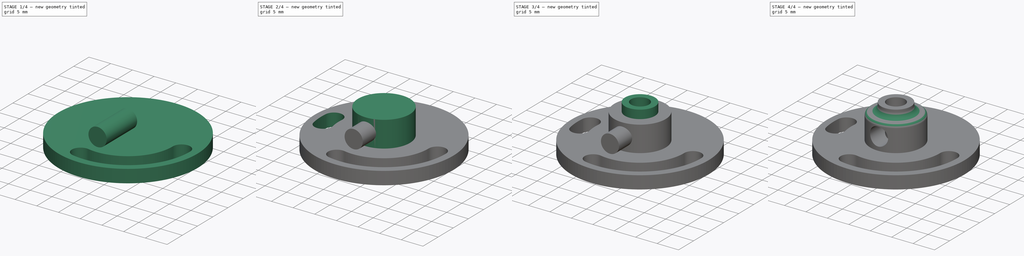
[diagram: build sequence overview — one tinted view per stage of 4, left to right]
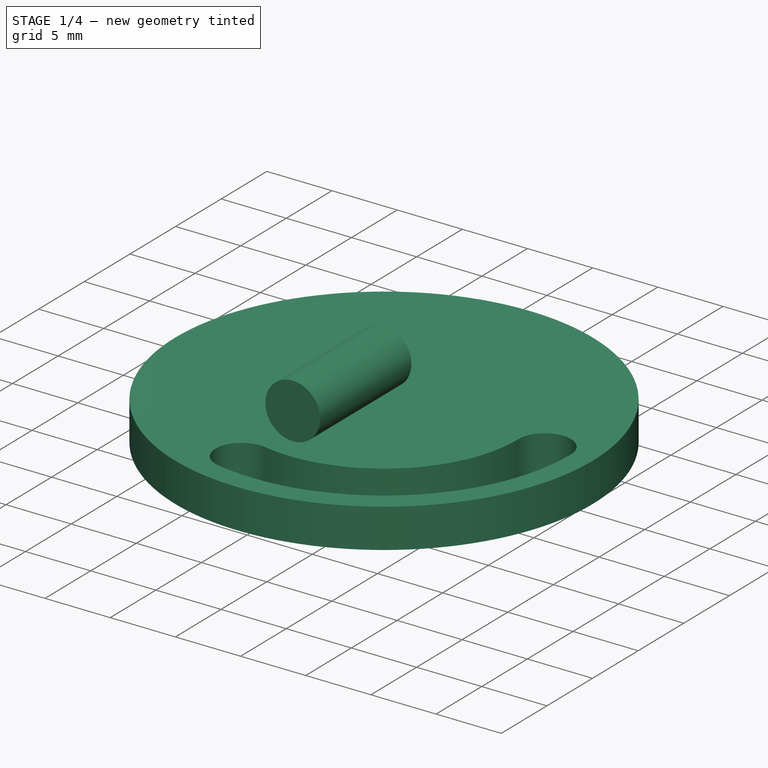
[diagram: stage 1 of 4 — iso view after this stage's code; geometry added in this stage tinted green]
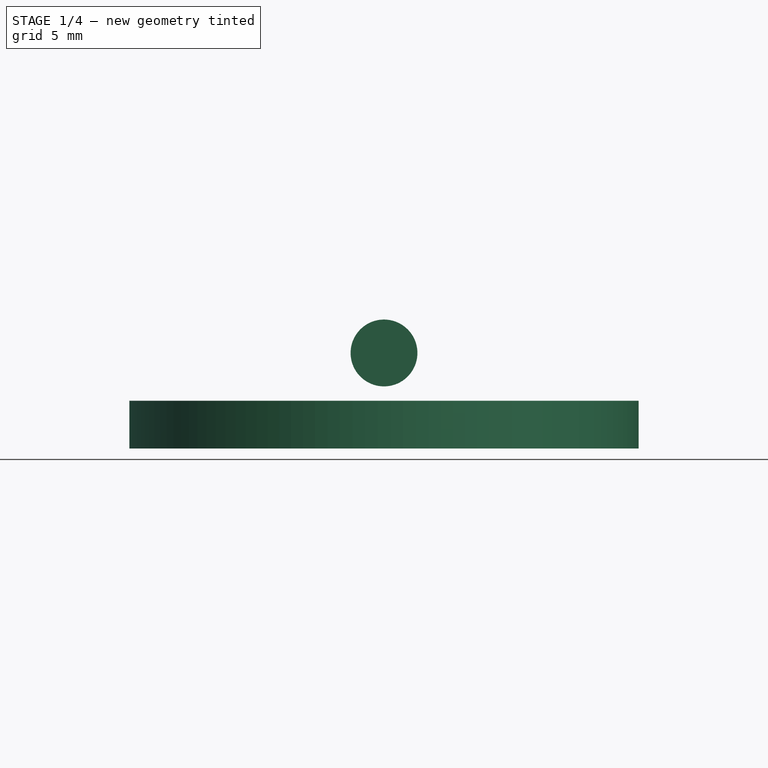
[diagram: stage 1 of 4 — front view after this stage's code; geometry added in this stage tinted green]
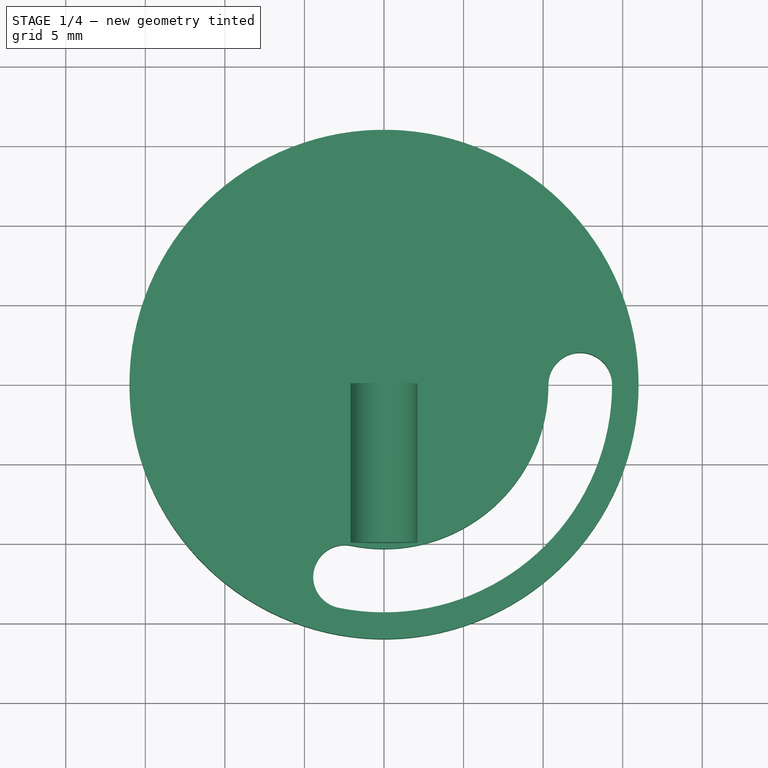
[diagram: stage 1 of 4 — top view after this stage's code; geometry added in this stage tinted green]
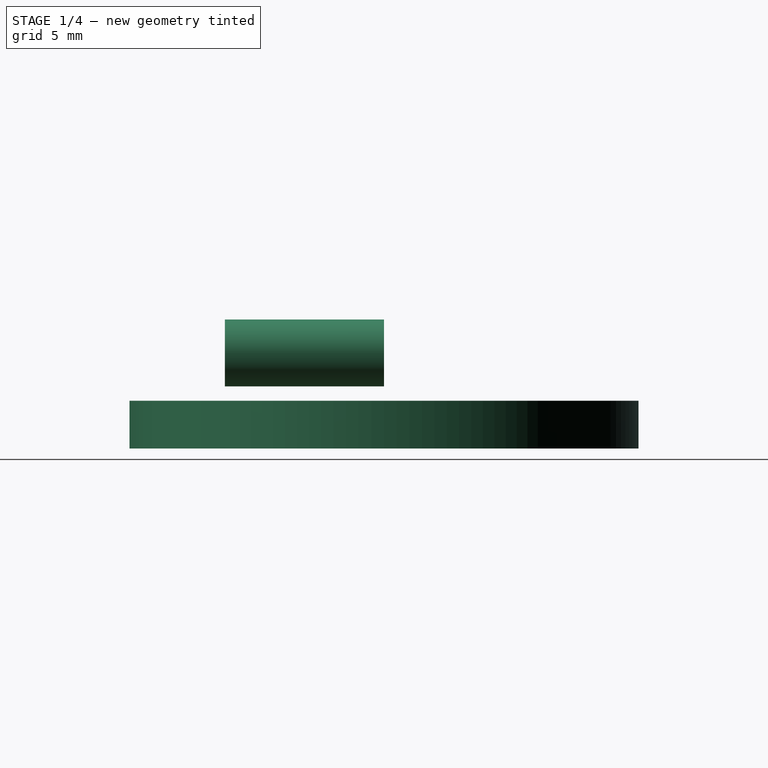
[diagram: stage 1 of 4 — right view after this stage's code; geometry added in this stage tinted green]
FCSTD DOCUMENT  (FreeCAD 0.16RUnknown)
Label: signal_plate
License: All rights reserved
LicenseURL: http://en.wikipedia.org/wiki/All_rights_reserved
objects: Sketcher::SketchObject×8, PartDesign::Pad×4, PartDesign::Pocket×4, PartDesign::Fillet×2, Part::Cut×1
note: 27 computed .brp shape members not serialized (recipe doc carries the construction recipe); baked Part::Feature solids carry a one-line shape summary decoded from their .brp

FEATURE [Sketcher::SketchObject] Sketch
  sketch-geometry (1):
    g0: Circle CenterX=0 CenterY=0 CenterZ=0 NormalX=0 NormalY=0 NormalZ=1 Radius=16
  constraints (2):
    c: Coincident(g0,g-1)
    c: Radius(g0) = 16
FEATURE [PartDesign::Pad] Pad
  Length = 3
  Length2 = 100
  Sketch = -> Sketch
  Type = 0
FEATURE [Sketcher::SketchObject] Sketch001
  Placement = pos=(0,0,3) rot=(0,0,1;0rad)
  Support = -> Pad [Face3]
  sketch-geometry (12):
    g0: ArcOfCircle CenterX=0 CenterY=0 CenterZ=0 NormalX=0 NormalY=0 NormalZ=1 Radius=14.3346 StartAngle=4.5124 EndAngle=6.28319
    g1: ArcOfCircle CenterX=0 CenterY=0 CenterZ=0 NormalX=0 NormalY=0 NormalZ=1 Radius=10.3346 StartAngle=4.5124 EndAngle=6.28319
    g2: ArcOfCircle CenterX=12.3346 CenterY=0 CenterZ=0 NormalX=0 NormalY=0 NormalZ=1 Radius=2 StartAngle=0 EndAngle=3.14159
    g3: ArcOfCircle CenterX=-2.45035 CenterY=-12.0887 CenterZ=0 NormalX=0 NormalY=0 NormalZ=1 Radius=2 StartAngle=1.37081 EndAngle=4.5124
    g4: LineSegment [constr] StartX=-2.84766 StartY=-14.0489 StartZ=0 EndX=-2.05304 EndY=-10.1286 EndZ=0
    g5: GeomPoint [constr] X=12.3346 Y=2.02682 Z=0
    g6: GeomPoint [constr] X=-4.41049 Y=-11.6914 Z=0
    g7: LineSegment [constr] StartX=-4.41049 StartY=-11.6914 StartZ=0 EndX=-2.45035 EndY=-12.0887 EndZ=0
    g8: LineSegment [constr] StartX=12.3346 StartY=0 StartZ=0 EndX=12.3346 EndY=2.02682 EndZ=0
    g9: LineSegment [constr] StartX=10.3346 StartY=0 StartZ=0 EndX=14.3346 EndY=0 EndZ=0
    g10: LineSegment [constr] StartX=0 StartY=0 StartZ=0 EndX=12.3346 EndY=2.02682 EndZ=0
    g11: LineSegment [constr] StartX=0 StartY=0 StartZ=0 EndX=-4.41049 EndY=-11.6914 EndZ=0
  constraints (30):
    c: Coincident(g0,g-1)
    c: PointOnObject(g0,g-1)
    c: Coincident(g1,g-1)
    c: PointOnObject(g1,g-1)
    c: PointOnObject(g2,g-1)
    c: Coincident(g2,g1)
    c: Coincident(g2,g0)
    c: Coincident(g3,g0)
    c: Coincident(g3,g1)
    c: Coincident(g4,g0)
    c: Coincident(g4,g1)
    c: PointOnObject(g3,g4)
    c: Perpendicular(g0,g4)
    c: Distance(g4) = 4
    c: PointOnObject(g6,g3)
    c: Coincident(g7,g6)
    c: Coincident(g7,g3)
    c: Coincident(g8,g2)
    c: Coincident(g8,g5)
    c: Vertical(g8)
    c: Perpendicular(g4,g7)
    c: Coincident(g9,g1)
    c: Coincident(g9,g0)
    c: Coincident(g10,g-1)
    c: Coincident(g10,g5)
    c: Tangent(g10,g2)
    c: Distance(g10) = 12.5
    c: Coincident(g11,g-1)
    c: Angle(g11,g10) = 2.0944
    c: Coincident(g6,g11)
FEATURE [PartDesign::Pocket] Pocket
  Length = 5
  Sketch = -> Sketch001
  Type = 1
FEATURE [Sketcher::SketchObject] Sketch007
  Placement = pos=(0,0,0) rot=(1,0,0;1.5708rad)
  sketch-geometry (1):
    g0: Circle CenterX=0 CenterY=6 CenterZ=0 NormalX=0 NormalY=0 NormalZ=1 Radius=2.1
  constraints (3):
    c: PointOnObject(g0,g-2)
    c: Radius(g0) = 2.1
    c: DistanceY(g-1,g0) = 6
FEATURE [PartDesign::Pad] Pad003
  Length = 10
  Length2 = 100
  Placement = pos=(0,0,0) rot=(1,0,0;1.5708rad)
  Sketch = -> Sketch007
  Type = 0
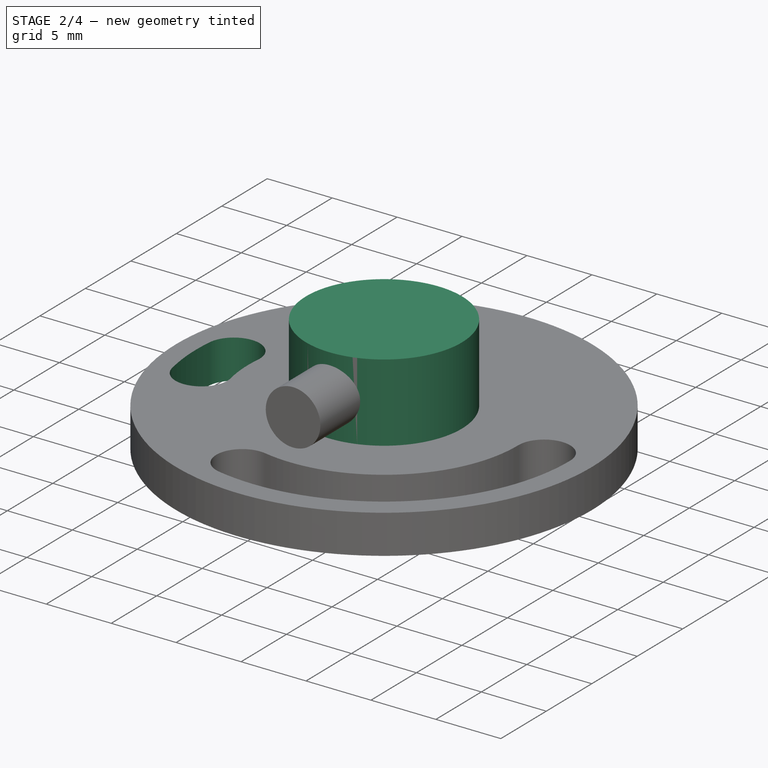
[diagram: stage 2 of 4 — iso view after this stage's code; geometry added in this stage tinted green]
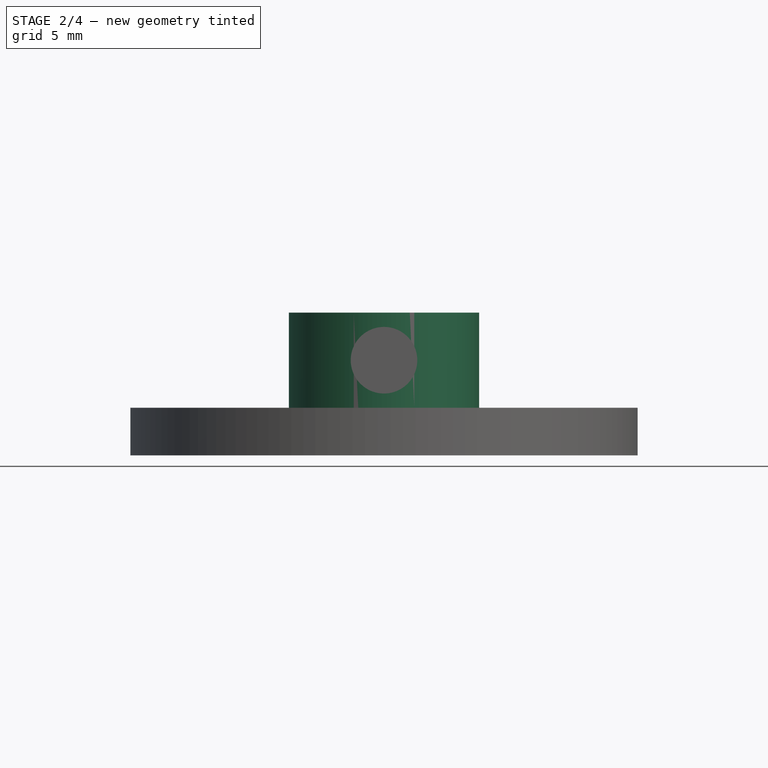
[diagram: stage 2 of 4 — front view after this stage's code; geometry added in this stage tinted green]
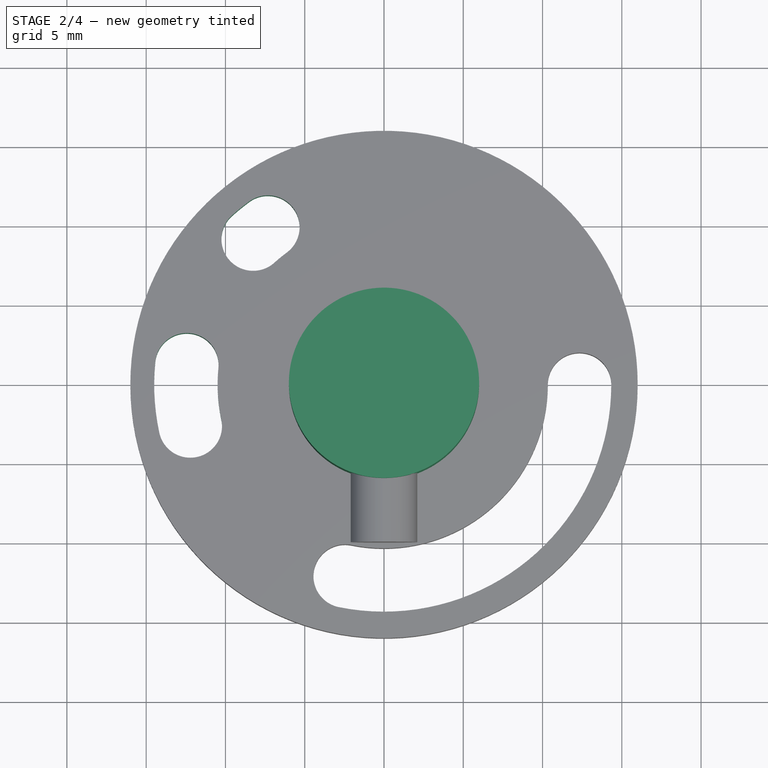
[diagram: stage 2 of 4 — top view after this stage's code; geometry added in this stage tinted green]
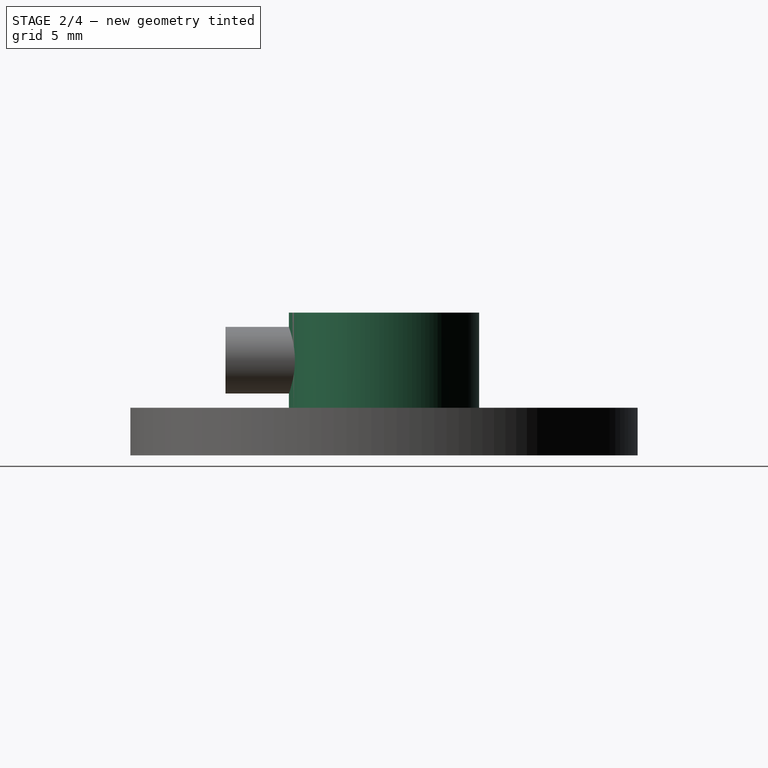
[diagram: stage 2 of 4 — right view after this stage's code; geometry added in this stage tinted green]
FEATURE [Sketcher::SketchObject] Sketch002
  ExternalGeometry = -> [Pocket]
  Placement = pos=(0,0,3) rot=(0,0,1;0rad)
  Support = -> Pocket [Face3]
  sketch-geometry (13):
    g0: ArcOfCircle CenterX=0 CenterY=0 CenterZ=0 NormalX=0 NormalY=0 NormalZ=1 Radius=10.4957 StartAngle=3.04217 EndAngle=3.35307
    g1: ArcOfCircle CenterX=0 CenterY=0 CenterZ=0 NormalX=0 NormalY=0 NormalZ=1 Radius=14.4957 StartAngle=3.04217 EndAngle=3.35307
    g2: ArcOfCircle CenterX=-12.2173 CenterY=-2.6229 CenterZ=0 NormalX=0 NormalY=0 NormalZ=1 Radius=2 StartAngle=3.35307 EndAngle=6.49466
    g3: ArcOfCircle CenterX=-12.434 CenterY=1.24031 CenterZ=0 NormalX=0 NormalY=0 NormalZ=1 Radius=2 StartAngle=6.18376 EndAngle=9.32535
    g4: LineSegment [constr] StartX=-14.4241 StartY=1.43883 StartZ=0 EndX=-10.4438 EndY=1.04179 EndZ=0
    g5: LineSegment [constr] StartX=-12.434 StartY=1.24031 StartZ=0 EndX=-12.2355 EndY=3.23044 EndZ=0
    g6: LineSegment [constr] StartX=-14.1727 StartY=-3.0427 StartZ=0 EndX=-10.2619 EndY=-2.20309 EndZ=0
    g7: LineSegment [constr] StartX=-12.2173 StartY=-2.6229 StartZ=0 EndX=-11.7975 EndY=-4.57834 EndZ=0
    g8: LineSegment [constr] StartX=-12.434 StartY=1.24031 StartZ=0 EndX=0 EndY=0 EndZ=0
    g9: LineSegment [constr] StartX=12.3346 StartY=2 StartZ=0 EndX=0 EndY=0 EndZ=0
    g10: LineSegment [constr] StartX=12.3346 StartY=0 StartZ=0 EndX=12.3346 EndY=2 EndZ=0
    g11: LineSegment [constr] StartX=0 StartY=0 StartZ=0 EndX=-11.7975 EndY=-4.57834 EndZ=0
    g12: LineSegment [constr] StartX=0 StartY=0 StartZ=0 EndX=-12.2355 EndY=3.23044 EndZ=0
  constraints (35):
    c: Coincident(g0,g-1)
    c: Coincident(g1,g-1)
    c: Coincident(g2,g0)
    c: Coincident(g2,g1)
    c: Coincident(g3,g0)
    c: Coincident(g3,g1)
    c: Coincident(g4,g1)
    c: Coincident(g4,g0)
    c: Coincident(g5,g3)
    c: PointOnObject(g5,g3)
    c: Coincident(g6,g1)
    c: Coincident(g6,g0)
    c: Coincident(g7,g2)
    c: PointOnObject(g7,g2)
    c: PointOnObject(g2,g6)
    c: PointOnObject(g3,g4)
    c: Perpendicular(g1,g4)
    c: Perpendicular(g1,g6)
    c: Perpendicular(g7,g6)
    c: Perpendicular(g4,g5)
    c: Equal(g2,g-4)
    c: Coincident(g8,g3)
    c: Coincident(g8,g-1)
    c: Vertical(g10)
    c: Equal(g8,g9)
    c: Coincident(g9,g-1)
    c: Coincident(g9,g10)
    c: Coincident(g10,g-3)
    c: PointOnObject(g9,g-3)
    c: Coincident(g11,g-1)
    c: Coincident(g12,g-1)
    c: Angle(g9,g12) = 2.72271
    c: Angle(g11,g9) = 2.93215
    c: Coincident(g12,g5)
    c: Coincident(g7,g11)
FEATURE [PartDesign::Pocket] Pocket001
  Length = 5
  Sketch = -> Sketch002
  Type = 2
FEATURE [Sketcher::SketchObject] Sketch003
  ExternalGeometry = -> [Pocket001]
  Placement = pos=(0,0,3) rot=(0,0,1;0rad)
  Support = -> Pocket001 [Face3]
  sketch-geometry (12):
    g0: LineSegment [constr] StartX=12.3346 StartY=2 StartZ=0 EndX=0 EndY=0 EndZ=0
    g1: LineSegment [constr] StartX=12.3346 StartY=2 StartZ=0 EndX=12.3346 EndY=0 EndZ=0
    g2: ArcOfCircle CenterX=0 CenterY=0 CenterZ=0 NormalX=0 NormalY=0 NormalZ=1 Radius=14.3346 StartAngle=2.20645 EndAngle=2.30383
    g3: ArcOfCircle CenterX=0 CenterY=0 CenterZ=0 NormalX=0 NormalY=0 NormalZ=1 Radius=10.3346 StartAngle=2.20645 EndAngle=2.30383
    g4: ArcOfCircle CenterX=-8.25345 CenterY=9.16638 CenterZ=0 NormalX=0 NormalY=0 NormalZ=1 Radius=2 StartAngle=2.30383 EndAngle=5.44543
    g5: ArcOfCircle CenterX=-7.32308 CenterY=9.92545 CenterZ=0 NormalX=0 NormalY=0 NormalZ=1 Radius=2 StartAngle=5.34804 EndAngle=8.48963
    g6: LineSegment [constr] StartX=-9.59171 StartY=10.6527 StartZ=0 EndX=-6.91519 EndY=7.68009 EndZ=0
    g7: LineSegment [constr] StartX=-8.51048 StartY=11.5348 StartZ=0 EndX=-6.13567 EndY=8.31608 EndZ=0
    g8: LineSegment [constr] StartX=-7.32308 StartY=9.92545 StartZ=0 EndX=-5.71371 EndY=11.1129 EndZ=0
    g9: LineSegment [constr] StartX=-8.25345 StartY=9.16638 StartZ=0 EndX=-9.73974 EndY=7.82812 EndZ=0
    g10: LineSegment [constr] StartX=0 StartY=0 StartZ=0 EndX=-9.73974 EndY=7.82812 EndZ=0
    g11: LineSegment [constr] StartX=0 StartY=0 StartZ=0 EndX=-5.71371 EndY=11.1129 EndZ=0
  constraints (33):
    c: PointOnObject(g0,g-3)
    c: Coincident(g0,g-1)
    c: Coincident(g1,g0)
    c: Coincident(g1,g-3)
    c: Vertical(g1)
    c: Coincident(g2,g-1)
    c: Coincident(g3,g-1)
    c: Coincident(g4,g3)
    c: Coincident(g5,g3)
    c: Coincident(g5,g2)
    c: Coincident(g2,g4)
    c: Coincident(g6,g2)
    c: Coincident(g6,g3)
    c: Coincident(g7,g2)
    c: Coincident(g7,g3)
    c: Coincident(g8,g5)
    c: PointOnObject(g8,g5)
    c: Coincident(g9,g4)
    c: PointOnObject(g9,g4)
    c: PointOnObject(g4,g6)
    c: PointOnObject(g5,g7)
    c: Perpendicular(g8,g7)
    c: Perpendicular(g2,g7)
    c: Perpendicular(g9,g6)
    c: Perpendicular(g2,g6)
    c: Equal(g-3,g5)
    c: Coincident(g10,g-1)
    c: Coincident(g11,g-1)
    c: Angle(g0,g11) = 1.88496
    c: Angle(g0,g10) = 2.30383
    c: Coincident(g10,g9)
    c: Coincident(g11,g8)
    c: Equal(g11,g0)
FEATURE [PartDesign::Pocket] Pocket002
  Length = 5
  Sketch = -> Sketch003
  Type = 2
FEATURE [Sketcher::SketchObject] Sketch004
  Placement = pos=(0,0,3) rot=(0,0,1;0rad)
  Support = -> Pocket002 [Face3]
  sketch-geometry (1):
    g0: Circle CenterX=0 CenterY=0 CenterZ=0 NormalX=0 NormalY=0 NormalZ=1 Radius=6
  constraints (2):
    c: Coincident(g0,g-1)
    c: Radius(g0) = 6
FEATURE [PartDesign::Pad] Pad001
  Length = 6
  Length2 = 100
  Sketch = -> Sketch004
  Type = 0
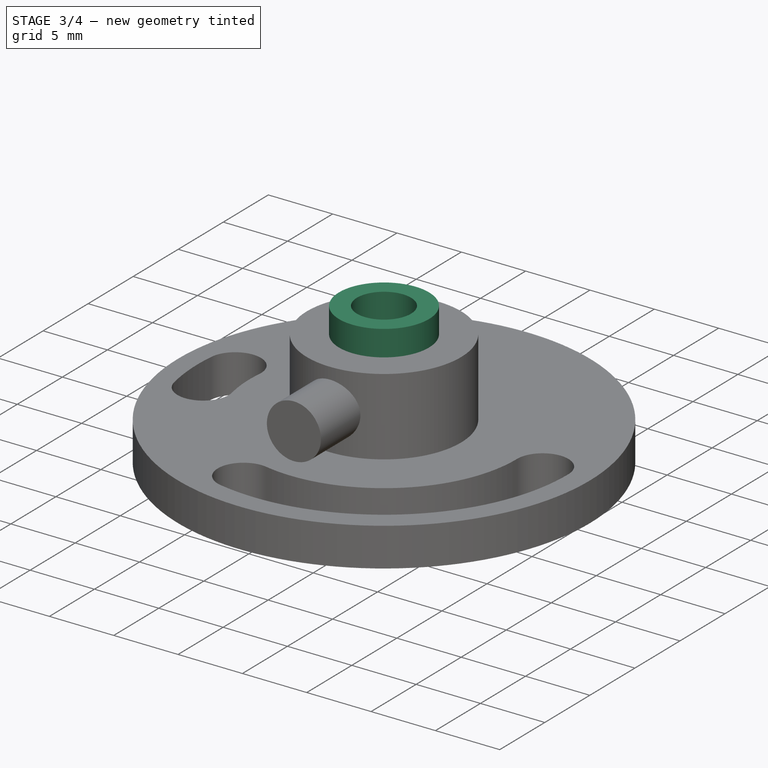
[diagram: stage 3 of 4 — iso view after this stage's code; geometry added in this stage tinted green]
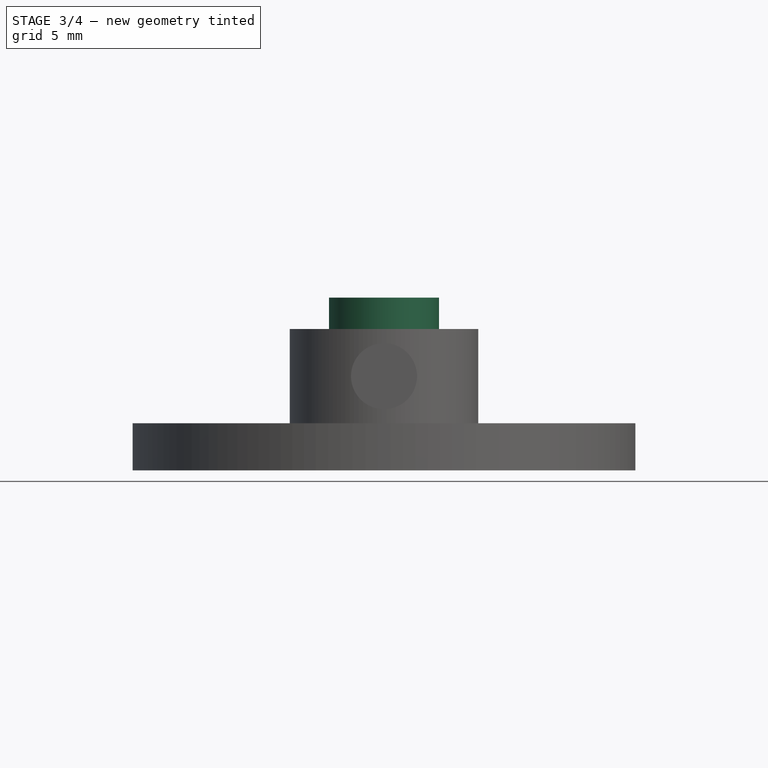
[diagram: stage 3 of 4 — front view after this stage's code; geometry added in this stage tinted green]
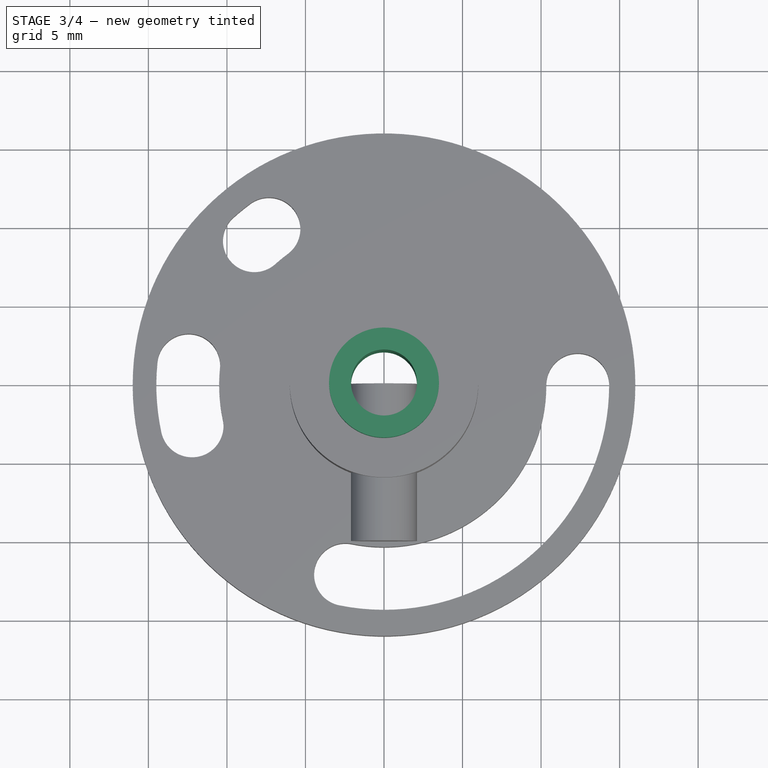
[diagram: stage 3 of 4 — top view after this stage's code; geometry added in this stage tinted green]
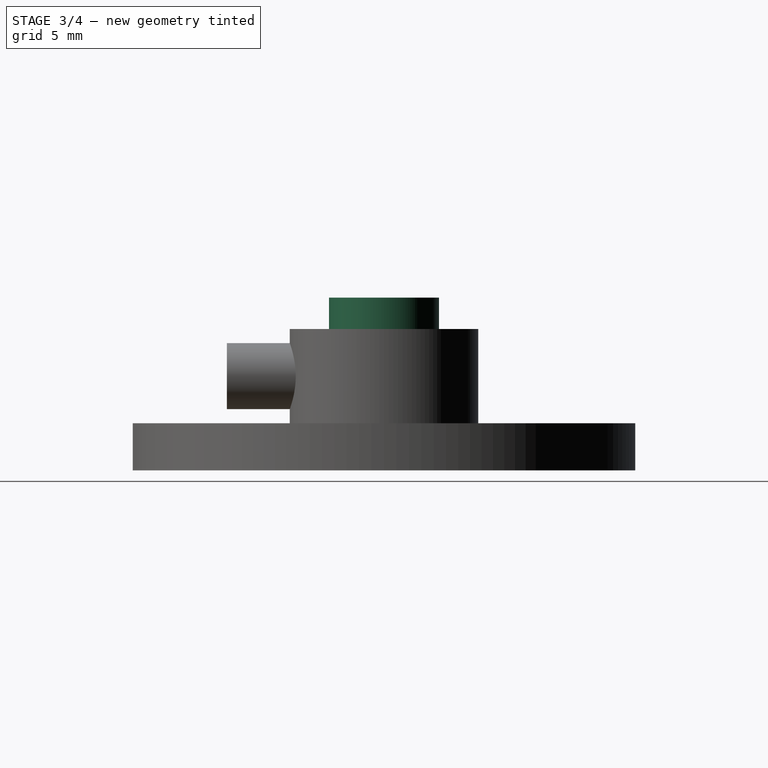
[diagram: stage 3 of 4 — right view after this stage's code; geometry added in this stage tinted green]
FEATURE [Sketcher::SketchObject] Sketch005
  Placement = pos=(0,0,9) rot=(0,0,1;0rad)
  Support = -> Pad001 [Face1]
  sketch-geometry (1):
    g0: Circle CenterX=0 CenterY=0 CenterZ=0 NormalX=0 NormalY=0 NormalZ=1 Radius=3.5
  constraints (2):
    c: Coincident(g0,g-1)
    c: Radius(g0) = 3.5
FEATURE [PartDesign::Pad] Pad002
  Length = 2
  Length2 = 100
  Sketch = -> Sketch005
  Type = 0
FEATURE [Sketcher::SketchObject] Sketch006
  Placement = pos=(0,0,11) rot=(0,0,1;0rad)
  Support = -> Pad002 [Face19]
  sketch-geometry (1):
    g0: Circle CenterX=0 CenterY=0 CenterZ=0 NormalX=0 NormalY=0 NormalZ=1 Radius=2.1
  constraints (2):
    c: Coincident(g0,g-1)
    c: Radius(g0) = 2.1
FEATURE [PartDesign::Pocket] Pocket003
  Length = 5
  Sketch = -> Sketch006
  Type = 1
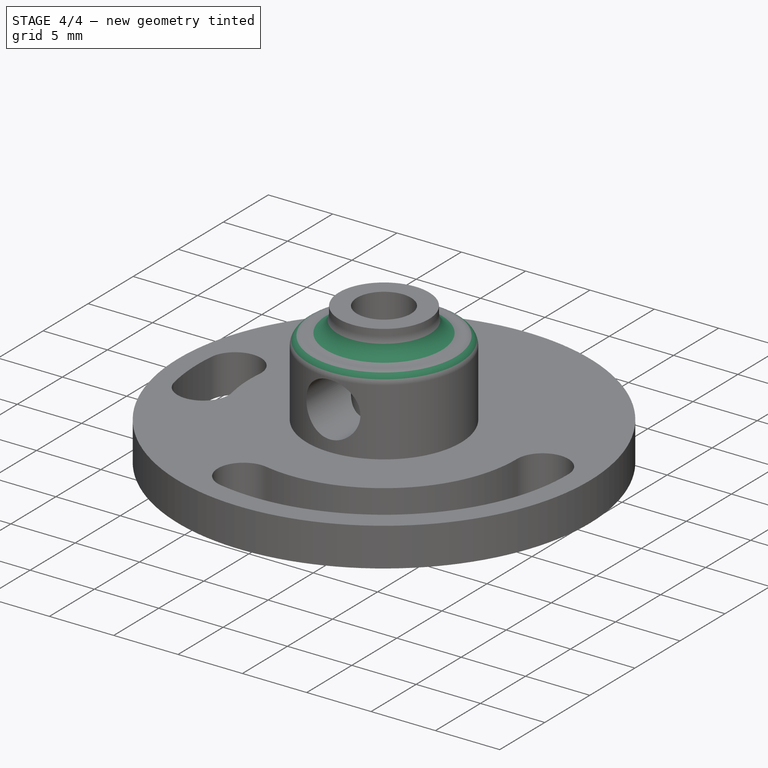
[diagram: stage 4 of 4 — iso view after this stage's code; geometry added in this stage tinted green]
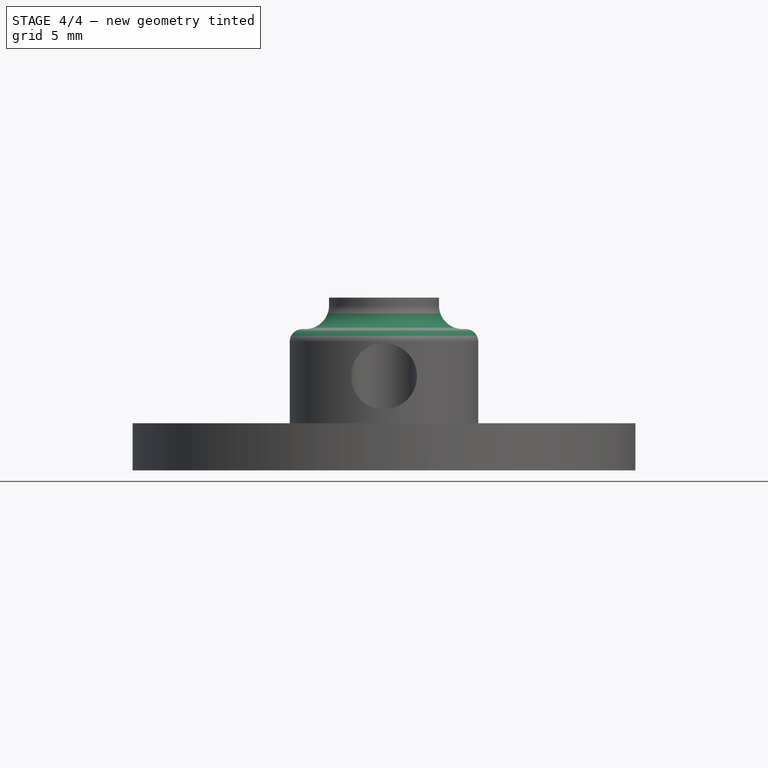
[diagram: stage 4 of 4 — front view after this stage's code; geometry added in this stage tinted green]
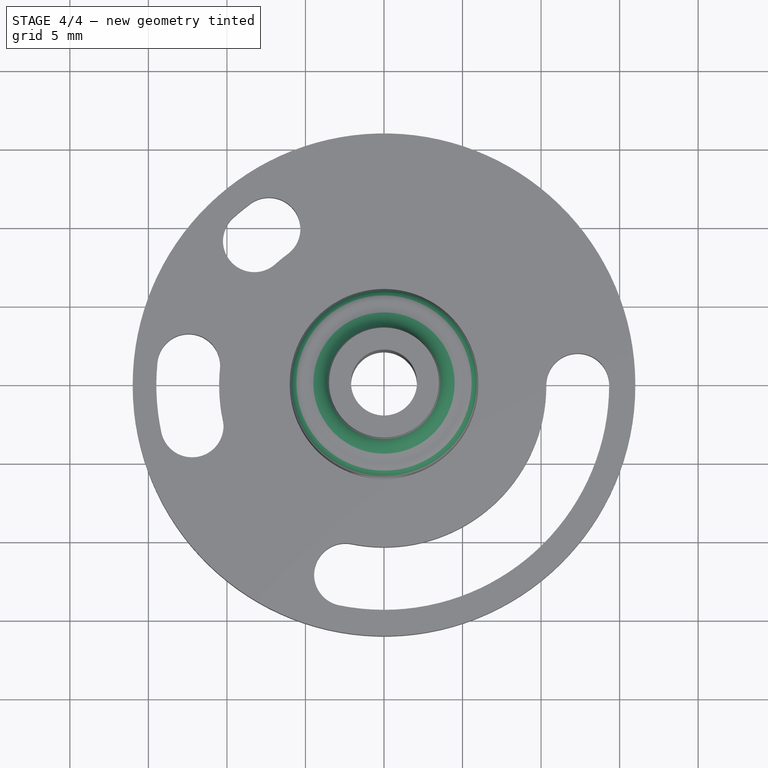
[diagram: stage 4 of 4 — top view after this stage's code; geometry added in this stage tinted green]
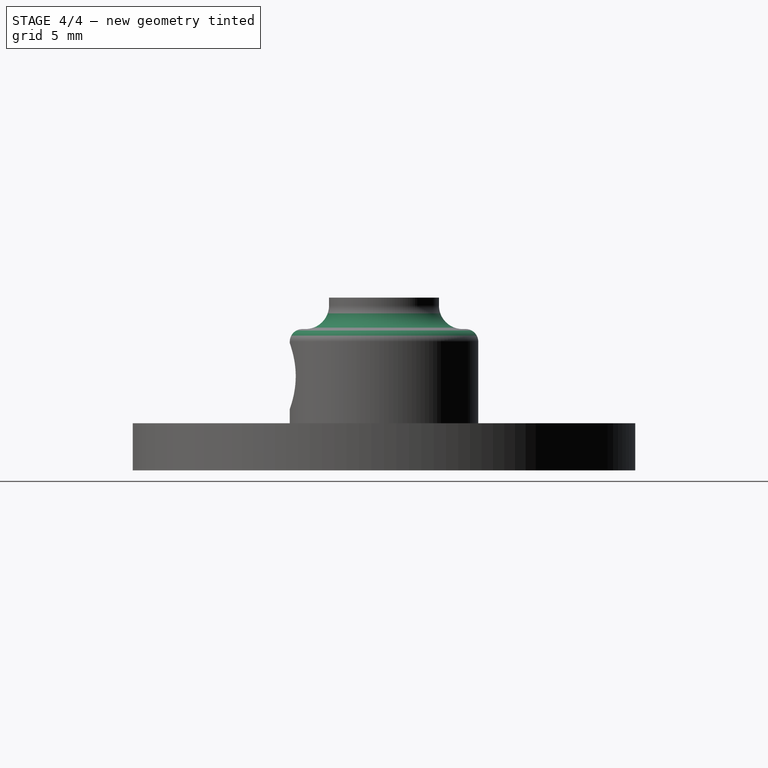
[diagram: stage 4 of 4 — right view after this stage's code; geometry added in this stage tinted green]
FEATURE [PartDesign::Fillet] Fillet
  Base = -> Pocket003 [Edge17]
  Radius = 1.5
FEATURE [PartDesign::Fillet] Fillet001
  Base = -> Fillet [Edge2]
  Radius = 0.8
FEATURE [Part::Cut] Cut
  Base = -> Fillet001
  Tool = -> Pad003
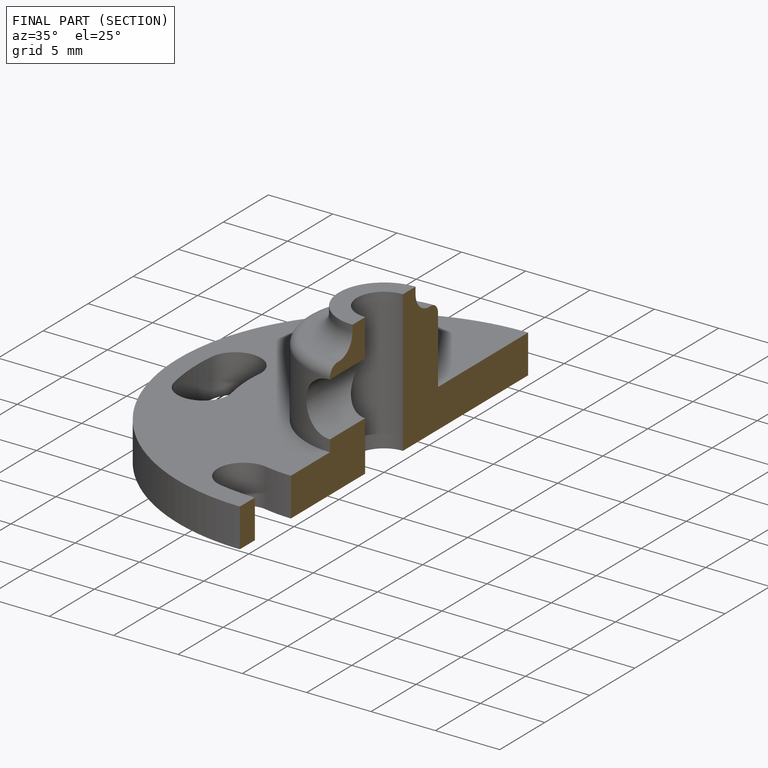
[diagram: finished part — half-section view (interior)]
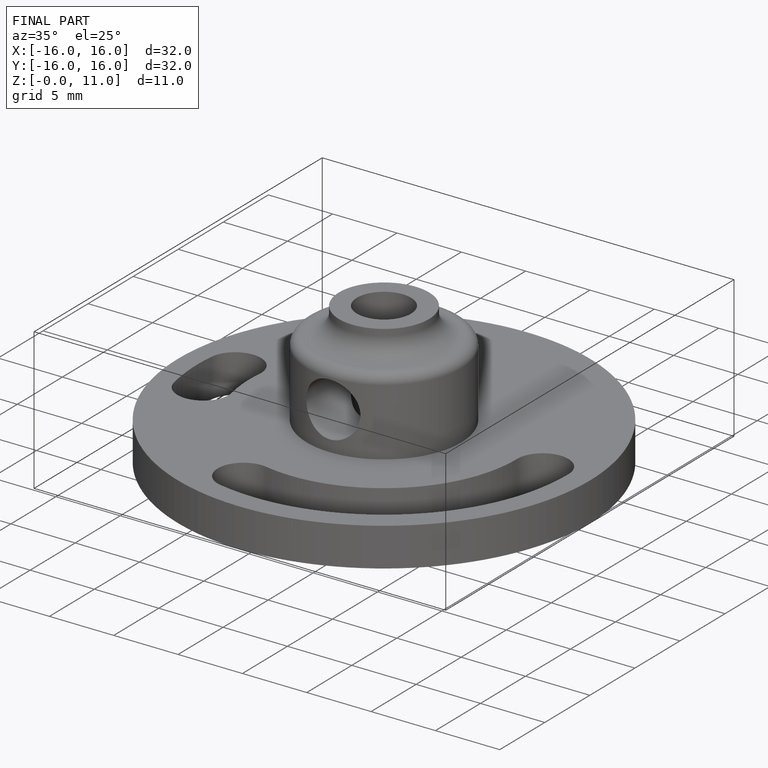
[diagram: finished part — iso view with bounding-box wireframe]
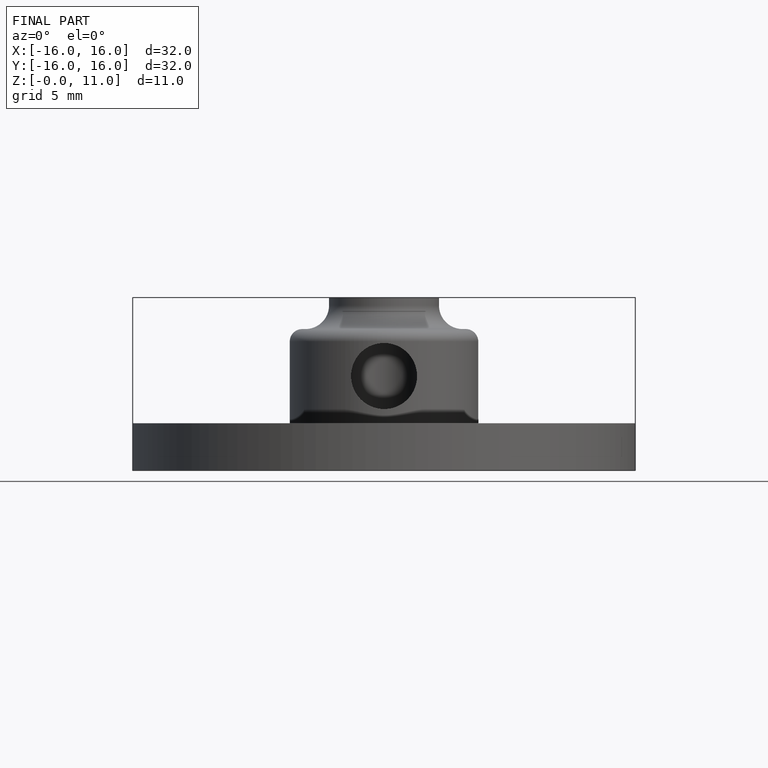
[diagram: finished part — front view with bounding-box wireframe]
